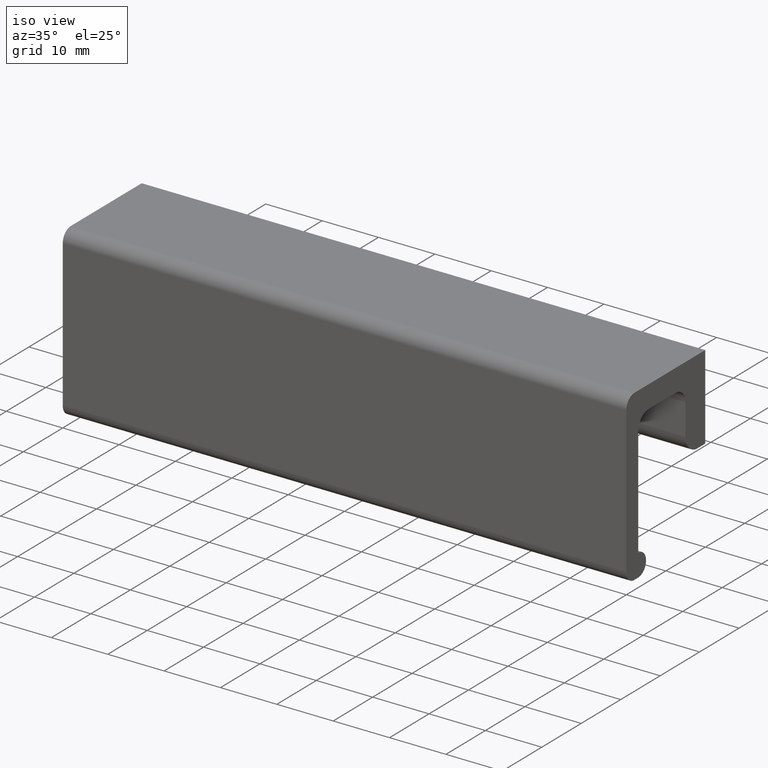
[diagram: clean part render]
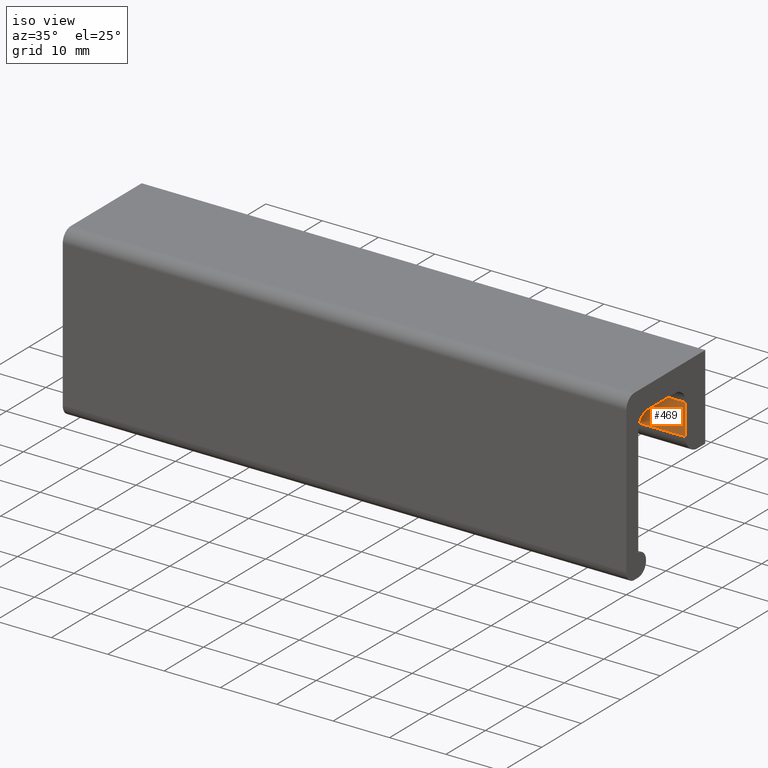
[diagram: same view with one face highlighted and labeled with its STEP entity id]
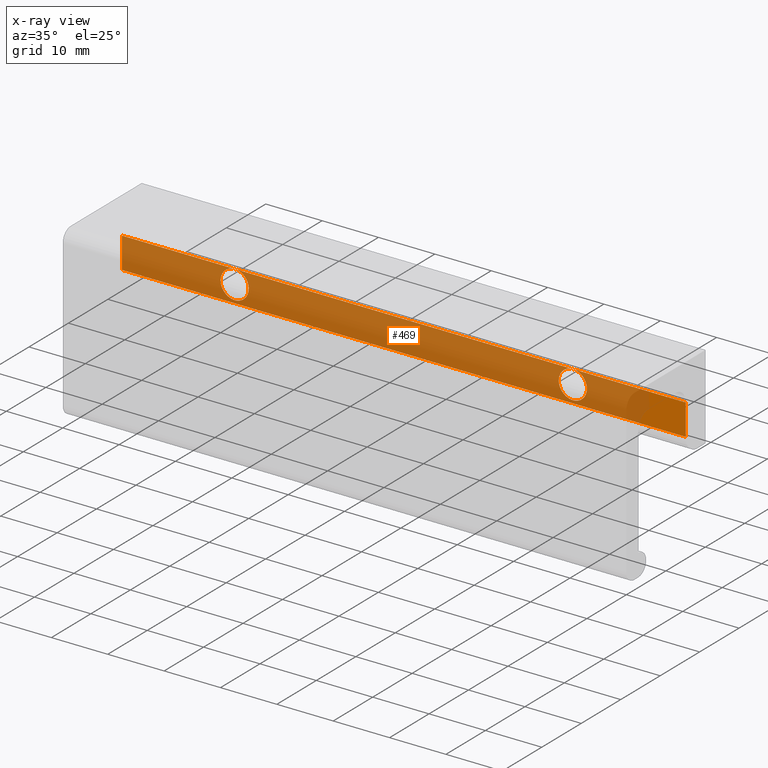
[diagram: x-ray of the same camera — body ghosted, the highlighted face saturated]
A machine part, iso view. The second image highlights one B-rep face of the part: STEP entity #469.
The next image is the same camera in x-ray: the body ghosted, the highlighted face saturated — about 92% of this face is hidden behind the body in this view.
In plain terms, the highlighted face is a freeform B-spline surface patch.
Its self-contained STEP definition (entity closure, byte-faithful):
#62=CARTESIAN_POINT('',(82.480665842679002,-5.000000000000120,-9.310317542139508));
#63=VERTEX_POINT('',#62);
#64=CARTESIAN_POINT('',(80.0,-5.000000000000120,-11.500000000000000));
#65=VERTEX_POINT('',#64);
#66=CARTESIAN_POINT('',(82.480665842679002,-5.000000000000120,-9.310317542139508));
#67=CARTESIAN_POINT('',(82.206748708538782,-5.000000000000121,-11.500000000000000));
#68=CARTESIAN_POINT('',(80.0,-5.000000000000120,-11.500000000000000));
#76=(BOUNDED_CURVE()B_SPLINE_CURVE(2,(#66,#67,#68),.UNSPECIFIED.,.F.,.U.)B_SPLINE_CURVE_WITH_KNOTS((3,3),(0.271473761521659,0.500000000000000),.UNSPECIFIED.)CURVE()GEOMETRIC_REPRESENTATION_ITEM()RATIONAL_B_SPLINE_CURVE((0.954005755228834,0.732264857714992,1.0))REPRESENTATION_ITEM(''));
#77=EDGE_CURVE('',#63,#65,#76,.T.);
#118=CARTESIAN_POINT('',(77.500095192344872,-5.000000000000121,-8.978183660647193));
#119=VERTEX_POINT('',#118);
#125=CARTESIAN_POINT('',(80.0,-5.000000000000120,-11.500000000000000));
#126=CARTESIAN_POINT('',(77.500000000000014,-5.000000000000121,-11.500000000000000));
#127=CARTESIAN_POINT('',(77.500000000000000,-5.000000000000120,-9.0));
#128=CARTESIAN_POINT('',(77.500000000000000,-5.000000000000120,-8.989091622341340));
#129=CARTESIAN_POINT('',(77.500095192344872,-5.000000000000121,-8.978183660647193));
#137=(BOUNDED_CURVE()B_SPLINE_CURVE(2,(#125,#126,#127,#128,#129),.UNSPECIFIED.,.F.,.U.)B_SPLINE_CURVE_WITH_KNOTS((3,2,3),(0.500000000000000,0.750000000000000,0.751539894420507),.UNSPECIFIED.)CURVE()GEOMETRIC_REPRESENTATION_ITEM()RATIONAL_B_SPLINE_CURVE((1.0,0.707106781186548,1.0,0.998195901466179,0.996414027902488))REPRESENTATION_ITEM(''));
#138=EDGE_CURVE('',#65,#119,#137,.T.);
#165=CARTESIAN_POINT('',(80.0,-5.000000000000110,-6.500000000000000));
#166=VERTEX_POINT('',#165);
#167=CARTESIAN_POINT('',(80.0,-5.000000000000120,-6.499999999999999));
#168=CARTESIAN_POINT('',(82.500000000000000,-5.000000000000121,-6.499999999999999));
#169=CARTESIAN_POINT('',(82.500000000000000,-5.000000000000120,-9.0));
#170=CARTESIAN_POINT('',(82.500000000000000,-5.000000000000120,-9.155761072887330));
#171=CARTESIAN_POINT('',(82.480665842679002,-5.000000000000120,-9.310317542139508));
#179=(BOUNDED_CURVE()B_SPLINE_CURVE(2,(#167,#168,#169,#170,#171),.UNSPECIFIED.,.F.,.U.)B_SPLINE_CURVE_WITH_KNOTS((3,2,3),(0.0,0.250000000000000,0.271473761521659),.UNSPECIFIED.)CURVE()GEOMETRIC_REPRESENTATION_ITEM()RATIONAL_B_SPLINE_CURVE((1.0,0.707106781186548,1.0,0.974841923471555,0.954005755228834))REPRESENTATION_ITEM(''));
#180=EDGE_CURVE('',#166,#63,#179,.T.);
#182=CARTESIAN_POINT('',(77.500095192344872,-5.000000000000122,-8.978183660647193));
#183=CARTESIAN_POINT('',(77.521721974715845,-5.000000000000120,-6.499999999999999));
#184=CARTESIAN_POINT('',(80.0,-5.000000000000120,-6.499999999999999));
#192=(BOUNDED_CURVE()B_SPLINE_CURVE(2,(#182,#183,#184),.UNSPECIFIED.,.F.,.U.)B_SPLINE_CURVE_WITH_KNOTS((3,3),(0.751539894420507,1.0),.UNSPECIFIED.)CURVE()GEOMETRIC_REPRESENTATION_ITEM()RATIONAL_B_SPLINE_CURVE((0.996414027902489,0.708910879720368,1.0))REPRESENTATION_ITEM(''));
#193=EDGE_CURVE('',#119,#166,#192,.T.);
#248=CARTESIAN_POINT('',(22.480665842678999,-5.000000000000120,-9.310317542139508));
#249=VERTEX_POINT('',#248);
#250=CARTESIAN_POINT('',(20.0,-5.000000000000120,-11.500000000000000));
#251=VERTEX_POINT('',#250);
#252=CARTESIAN_POINT('',(22.480665842679002,-5.000000000000122,-9.310317542139508));
#253=CARTESIAN_POINT('',(22.206748708538779,-5.000000000000118,-11.499999999999998));
#254=CARTESIAN_POINT('',(20.0,-5.000000000000120,-11.500000000000000));
#262=(BOUNDED_CURVE()B_SPLINE_CURVE(2,(#252,#253,#254),.UNSPECIFIED.,.F.,.U.)B_SPLINE_CURVE_WITH_KNOTS((3,3),(0.271473761521659,0.500000000000000),.UNSPECIFIED.)CURVE()GEOMETRIC_REPRESENTATION_ITEM()RATIONAL_B_SPLINE_CURVE((0.954005755228834,0.732264857714992,1.0))REPRESENTATION_ITEM(''));
#263=EDGE_CURVE('',#249,#251,#262,.T.);
#304=CARTESIAN_POINT('',(17.500095192344869,-5.000000000000121,-8.978183660647193));
#305=VERTEX_POINT('',#304);
#311=CARTESIAN_POINT('',(20.0,-5.000000000000120,-11.500000000000000));
#312=CARTESIAN_POINT('',(17.499999999999996,-5.000000000000121,-11.500000000000000));
#313=CARTESIAN_POINT('',(17.500000000000000,-5.000000000000120,-9.0));
#314=CARTESIAN_POINT('',(17.499999999999996,-5.000000000000120,-8.989091622341340));
#315=CARTESIAN_POINT('',(17.500095192344865,-5.000000000000121,-8.978183660647193));
#323=(BOUNDED_CURVE()B_SPLINE_CURVE(2,(#311,#312,#313,#314,#315),.UNSPECIFIED.,.F.,.U.)B_SPLINE_CURVE_WITH_KNOTS((3,2,3),(0.500000000000000,0.750000000000000,0.751539894420507),.UNSPECIFIED.)CURVE()GEOMETRIC_REPRESENTATION_ITEM()RATIONAL_B_SPLINE_CURVE((1.0,0.707106781186548,1.0,0.998195901466179,0.996414027902488))REPRESENTATION_ITEM(''));
#324=EDGE_CURVE('',#251,#305,#323,.T.);
#351=CARTESIAN_POINT('',(20.0,-5.000000000000110,-6.500000000000000));
#352=VERTEX_POINT('',#351);
#353=CARTESIAN_POINT('',(20.0,-5.000000000000120,-6.499999999999999));
#354=CARTESIAN_POINT('',(22.500000000000000,-5.000000000000121,-6.499999999999999));
#355=CARTESIAN_POINT('',(22.500000000000000,-5.000000000000120,-9.0));
#356=CARTESIAN_POINT('',(22.499999999999996,-5.000000000000120,-9.155761072887330));
#357=CARTESIAN_POINT('',(22.480665842679002,-5.000000000000122,-9.310317542139508));
#365=(BOUNDED_CURVE()B_SPLINE_CURVE(2,(#353,#354,#355,#356,#357),.UNSPECIFIED.,.F.,.U.)B_SPLINE_CURVE_WITH_KNOTS((3,2,3),(0.0,0.250000000000000,0.271473761521659),.UNSPECIFIED.)CURVE()GEOMETRIC_REPRESENTATION_ITEM()RATIONAL_B_SPLINE_CURVE((1.0,0.707106781186548,1.0,0.974841923471555,0.954005755228834))REPRESENTATION_ITEM(''));
#366=EDGE_CURVE('',#352,#249,#365,.T.);
#368=CARTESIAN_POINT('',(17.500095192344862,-5.000000000000122,-8.978183660647193));
#369=CARTESIAN_POINT('',(17.521721974715845,-5.000000000000120,-6.499999999999999));
#370=CARTESIAN_POINT('',(20.0,-5.000000000000120,-6.499999999999999));
#378=(BOUNDED_CURVE()B_SPLINE_CURVE(2,(#368,#369,#370),.UNSPECIFIED.,.F.,.U.)B_SPLINE_CURVE_WITH_KNOTS((3,3),(0.751539894420507,1.0),.UNSPECIFIED.)CURVE()GEOMETRIC_REPRESENTATION_ITEM()RATIONAL_B_SPLINE_CURVE((0.996414027902489,0.708910879720368,1.0))REPRESENTATION_ITEM(''));
#379=EDGE_CURVE('',#305,#352,#378,.T.);
#416=CARTESIAN_POINT('',(-4.994999806180585,-5.000000000000110,-6.225275010660067));
#417=CARTESIAN_POINT('',(-4.994999806180585,-5.000000000000110,-12.274725136861431));
#418=CARTESIAN_POINT('',(104.995002488389600,-5.000000000000110,-6.225275010660067));
#419=CARTESIAN_POINT('',(104.995002488389600,-5.000000000000110,-12.274725136861431));
#420=B_SPLINE_SURFACE_WITH_KNOTS('',1,1,((#416,#418),(#417,#419)),.UNSPECIFIED.,.F.,.F.,.U.,(2,2),(2,2),(0.0,6.049450126201364),(0.0,109.990002294570200),.UNSPECIFIED.);
#421=CARTESIAN_POINT('',(100.0,-5.000000000000110,-6.500000000000000));
#422=VERTEX_POINT('',#421);
#423=CARTESIAN_POINT('',(100.0,-5.000000000000110,-6.500000000000000));
#424=CARTESIAN_POINT('',(80.0,-5.000000000000110,-6.500000000000000));
#425=QUASI_UNIFORM_CURVE('',1,(#423,#424),.UNSPECIFIED.,.F.,.U.);
#426=EDGE_CURVE('',#422,#166,#425,.T.);
#427=ORIENTED_EDGE('',*,*,#426,.T.);
#428=ORIENTED_EDGE('',*,*,#180,.T.);
#429=ORIENTED_EDGE('',*,*,#77,.T.);
#430=ORIENTED_EDGE('',*,*,#138,.T.);
#431=ORIENTED_EDGE('',*,*,#193,.T.);
#432=CARTESIAN_POINT('',(80.0,-5.000000000000110,-6.500000000000000));
#433=CARTESIAN_POINT('',(20.0,-5.000000000000110,-6.500000000000000));
#434=QUASI_UNIFORM_CURVE('',1,(#432,#433),.UNSPECIFIED.,.F.,.U.);
#435=EDGE_CURVE('',#166,#352,#434,.T.);
#436=ORIENTED_EDGE('',*,*,#435,.T.);
#437=ORIENTED_EDGE('',*,*,#366,.T.);
#438=ORIENTED_EDGE('',*,*,#263,.T.);
#439=ORIENTED_EDGE('',*,*,#324,.T.);
#440=ORIENTED_EDGE('',*,*,#379,.T.);
#441=CARTESIAN_POINT('',(0.0,-5.000000000000110,-6.500000000000000));
#442=VERTEX_POINT('',#441);
#443=CARTESIAN_POINT('',(20.0,-5.000000000000110,-6.500000000000000));
#444=CARTESIAN_POINT('',(0.0,-5.000000000000110,-6.500000000000000));
#445=QUASI_UNIFORM_CURVE('',1,(#443,#444),.UNSPECIFIED.,.F.,.U.);
#446=EDGE_CURVE('',#352,#442,#445,.T.);
#447=ORIENTED_EDGE('',*,*,#446,.T.);
#448=CARTESIAN_POINT('',(0.0,-5.0,-12.0));
#449=VERTEX_POINT('',#448);
#450=CARTESIAN_POINT('',(0.0,-5.0,-12.0));
#451=CARTESIAN_POINT('',(0.0,-5.000000000000110,-6.500000000000000));
#452=QUASI_UNIFORM_CURVE('',1,(#450,#451),.UNSPECIFIED.,.F.,.U.);
#453=EDGE_CURVE('',#449,#442,#452,.T.);
#454=ORIENTED_EDGE('',*,*,#453,.F.);
#455=CARTESIAN_POINT('',(100.0,-5.0,-12.0));
#456=VERTEX_POINT('',#455);
#457=CARTESIAN_POINT('',(100.0,-5.0,-12.0));
#458=CARTESIAN_POINT('',(0.0,-5.0,-12.0));
#459=QUASI_UNIFORM_CURVE('',1,(#457,#458),.UNSPECIFIED.,.F.,.U.);
#460=EDGE_CURVE('',#456,#449,#459,.T.);
#461=ORIENTED_EDGE('',*,*,#460,.F.);
#462=CARTESIAN_POINT('',(100.0,-5.0,-12.0));
#463=CARTESIAN_POINT('',(100.0,-5.000000000000110,-6.500000000000000));
#464=QUASI_UNIFORM_CURVE('',1,(#462,#463),.UNSPECIFIED.,.F.,.U.);
#465=EDGE_CURVE('',#456,#422,#464,.T.);
#466=ORIENTED_EDGE('',*,*,#465,.T.);
#467=EDGE_LOOP('',(#427,#428,#429,#430,#431,#436,#437,#438,#439,#440,#447,#454,#461,#466));
#468=FACE_OUTER_BOUND('',#467,.T.);
#469=ADVANCED_FACE('',(#468),#420,.T.);